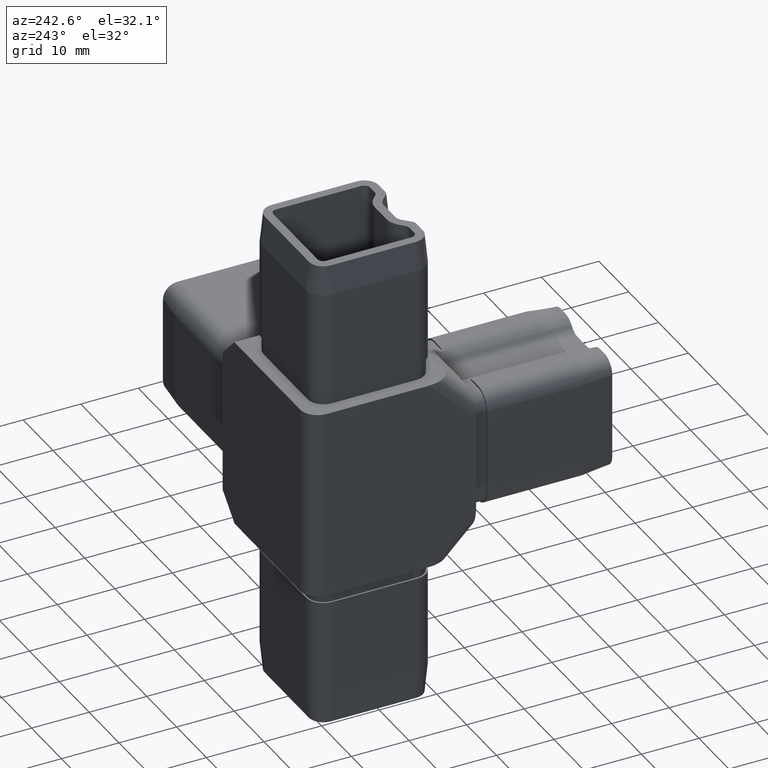
[diagram: clean part render]
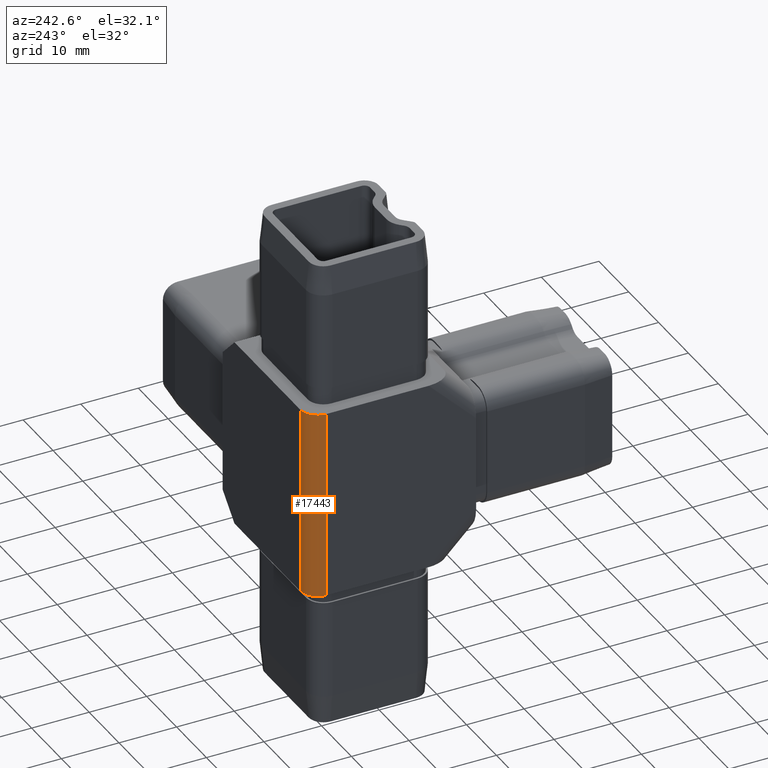
[diagram: same view with one face highlighted and labeled with its STEP entity id]
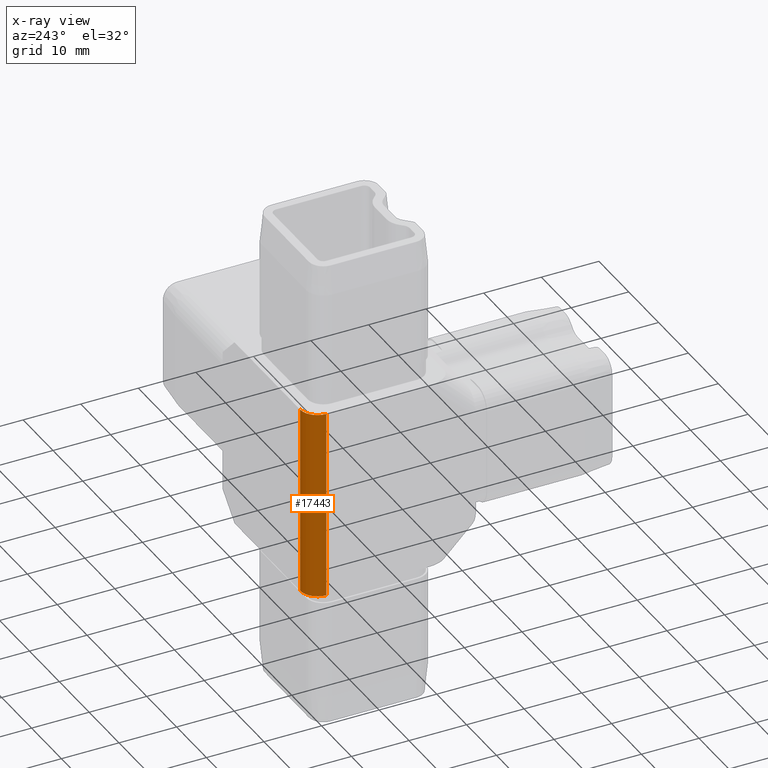
[diagram: x-ray of the same camera — body ghosted, the highlighted face saturated]
A machine part, auxiliary view. The second image highlights one B-rep face of the part: STEP entity #17443.
The next image is the same camera in x-ray: the body ghosted, the highlighted face saturated — about 0% of this face is hidden behind the body in this view.
In plain terms, the highlighted cylindrical surface (edge-blend (fillet) strip) has radius 3 mm, axis along (0, 0, -1).
Its self-contained STEP definition (entity closure, byte-faithful):
#159 = DIRECTION ( 'NONE',  ( 1.000000000000000000, 0.0000000000000000000, 0.0000000000000000000 ) ) ;
#1145 = DIRECTION ( 'NONE',  ( -1.000000000000000000, 0.0000000000000000000, 0.0000000000000000000 ) ) ;
#2260 = LINE ( 'NONE', #2945, #6455 ) ;
#2896 = CYLINDRICAL_SURFACE ( 'NONE', #13360, 2.999999999999999100 ) ;
#2945 = CARTESIAN_POINT ( 'NONE',  ( -14.50000000000000500, 11.50000000000000400, 16.50000000000000000 ) ) ;
#3111 = LINE ( 'NONE', #13980, #3579 ) ;
#3579 = VECTOR ( 'NONE', #6155, 1000.000000000000000 ) ;
#4878 = AXIS2_PLACEMENT_3D ( 'NONE', #9965, #11344, #12886 ) ;
#5900 = ORIENTED_EDGE ( 'NONE', *, *, #18989, .F. ) ;
#6155 = DIRECTION ( 'NONE',  ( -0.0000000000000000000, -0.0000000000000000000, 1.000000000000000000 ) ) ;
#6455 = VECTOR ( 'NONE', #12396, 1000.000000000000000 ) ;
#6510 = VERTEX_POINT ( 'NONE', #17307 ) ;
#6966 = EDGE_LOOP ( 'NONE', ( #5900, #6983, #16464, #15671 ) ) ;
#6983 = ORIENTED_EDGE ( 'NONE', *, *, #10500, .F. ) ;
#7432 = CARTESIAN_POINT ( 'NONE',  ( -11.50000000000000700, 11.50000000000000400, 16.50000000000000000 ) ) ;
#8066 = VERTEX_POINT ( 'NONE', #16699 ) ;
#8297 = CIRCLE ( 'NONE', #4878, 2.999999999999999100 ) ;
#9107 = AXIS2_PLACEMENT_3D ( 'NONE', #18918, #17160, #159 ) ;
#9965 = CARTESIAN_POINT ( 'NONE',  ( -11.50000000000000700, 11.50000000000000400, 16.50000000000000000 ) ) ;
#10500 = EDGE_CURVE ( 'NONE', #15370, #6510, #3111, .T. ) ;
#11344 = DIRECTION ( 'NONE',  ( 0.0000000000000000000, 0.0000000000000000000, 1.000000000000000000 ) ) ;
#11804 = CARTESIAN_POINT ( 'NONE',  ( -11.50000000000000700, 14.50000000000000200, -16.50000000000000000 ) ) ;
#12352 = VERTEX_POINT ( 'NONE', #17936 ) ;
#12396 = DIRECTION ( 'NONE',  ( 0.0000000000000000000, 0.0000000000000000000, -1.000000000000000000 ) ) ;
#12886 = DIRECTION ( 'NONE',  ( 1.000000000000000000, 0.0000000000000000000, 0.0000000000000000000 ) ) ;
#13360 = AXIS2_PLACEMENT_3D ( 'NONE', #7432, #18080, #1145 ) ;
#13980 = CARTESIAN_POINT ( 'NONE',  ( -11.50000000000000700, 14.50000000000000200, 16.50000000000000000 ) ) ;
#14031 = EDGE_CURVE ( 'NONE', #8066, #12352, #2260, .T. ) ;
#14457 = EDGE_CURVE ( 'NONE', #12352, #15370, #17521, .T. ) ;
#15370 = VERTEX_POINT ( 'NONE', #11804 ) ;
#15671 = ORIENTED_EDGE ( 'NONE', *, *, #14031, .F. ) ;
#16464 = ORIENTED_EDGE ( 'NONE', *, *, #14457, .F. ) ;
#16699 = CARTESIAN_POINT ( 'NONE',  ( -14.50000000000000500, 11.50000000000000400, 16.50000000000000000 ) ) ;
#17160 = DIRECTION ( 'NONE',  ( -0.0000000000000000000, -0.0000000000000000000, -1.000000000000000000 ) ) ;
#17307 = CARTESIAN_POINT ( 'NONE',  ( -11.50000000000000700, 14.50000000000000200, 16.50000000000000000 ) ) ;
#17443 = ADVANCED_FACE ( 'NONE', ( #18920 ), #2896, .T. ) ;
#17521 = CIRCLE ( 'NONE', #9107, 2.999999999999999100 ) ;
#17936 = CARTESIAN_POINT ( 'NONE',  ( -14.50000000000000500, 11.50000000000000400, -16.50000000000000000 ) ) ;
#18080 = DIRECTION ( 'NONE',  ( 0.0000000000000000000, 0.0000000000000000000, -1.000000000000000000 ) ) ;
#18918 = CARTESIAN_POINT ( 'NONE',  ( -11.50000000000000700, 11.50000000000000400, -16.50000000000000000 ) ) ;
#18920 = FACE_OUTER_BOUND ( 'NONE', #6966, .T. ) ;
#18989 = EDGE_CURVE ( 'NONE', #6510, #8066, #8297, .T. ) ;